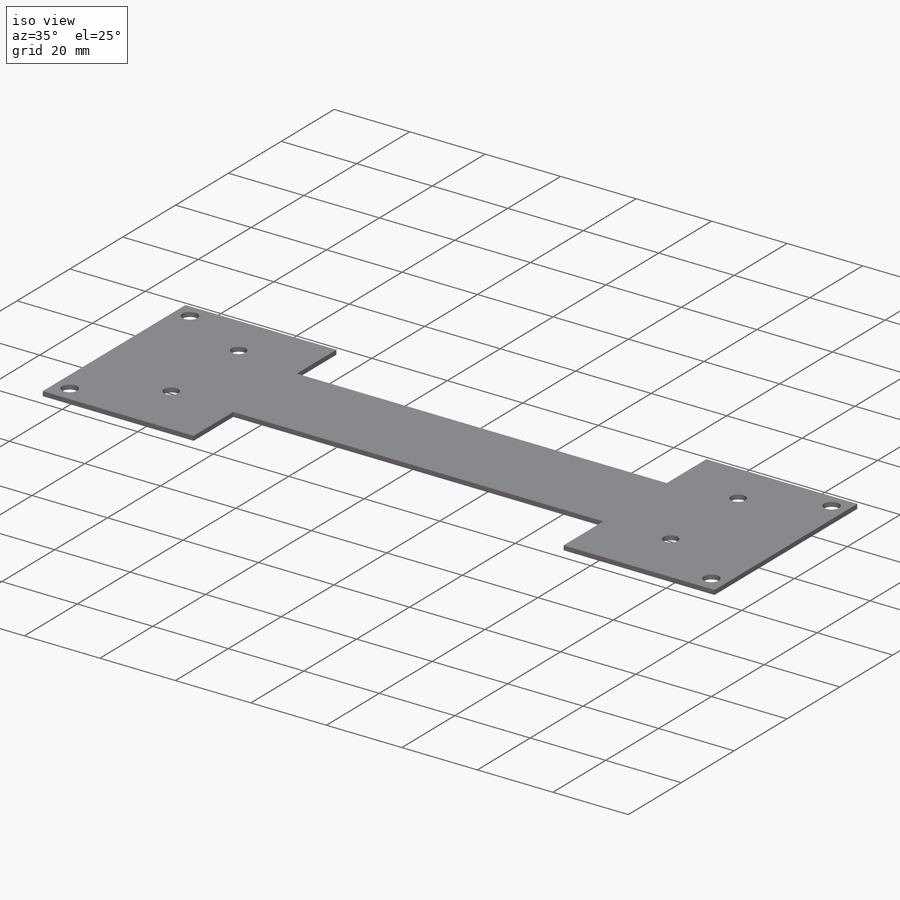
[diagram: iso view]
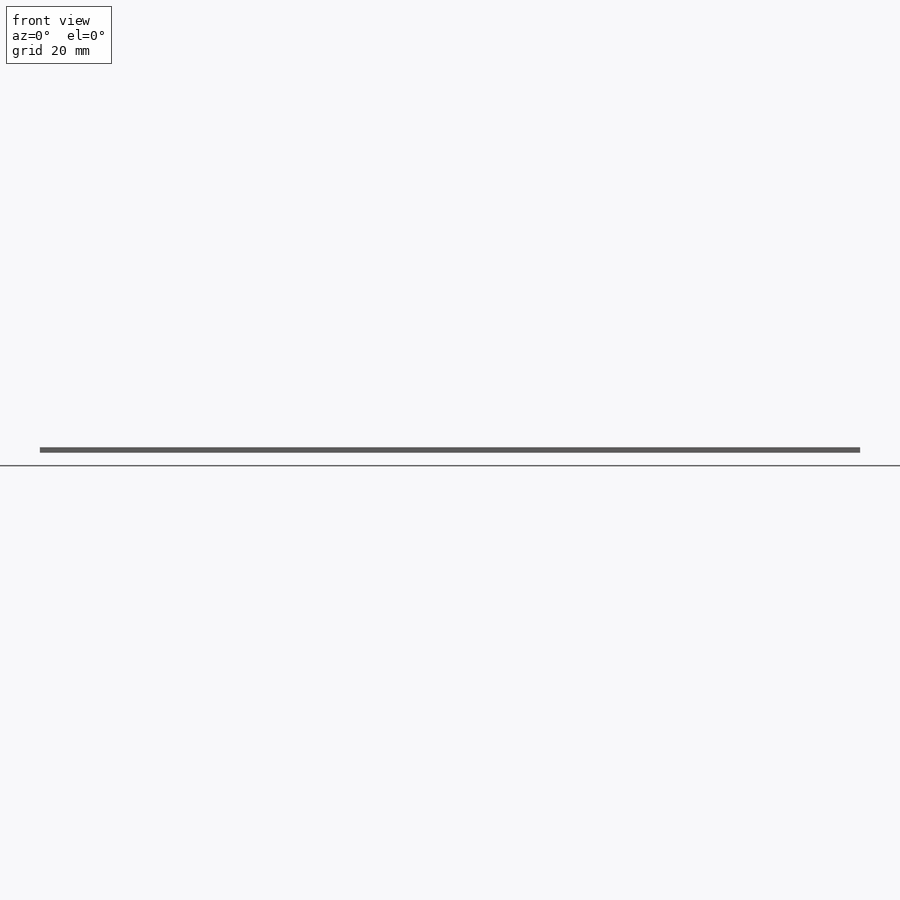
[diagram: front view]
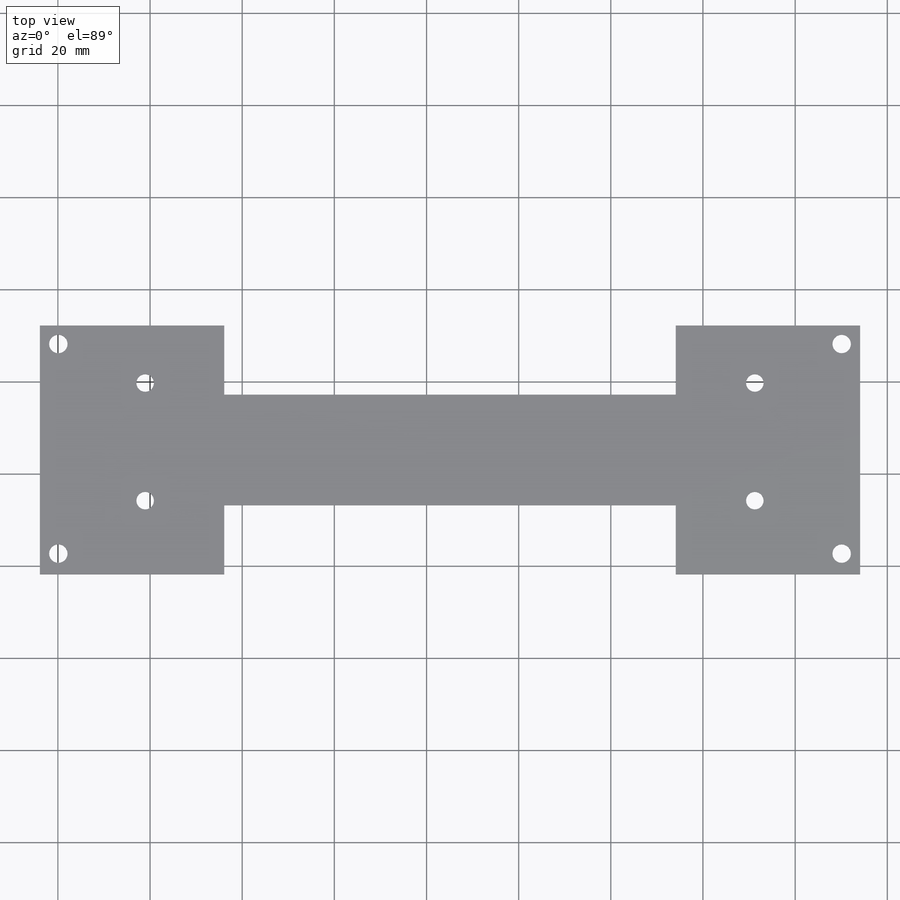
[diagram: top view]
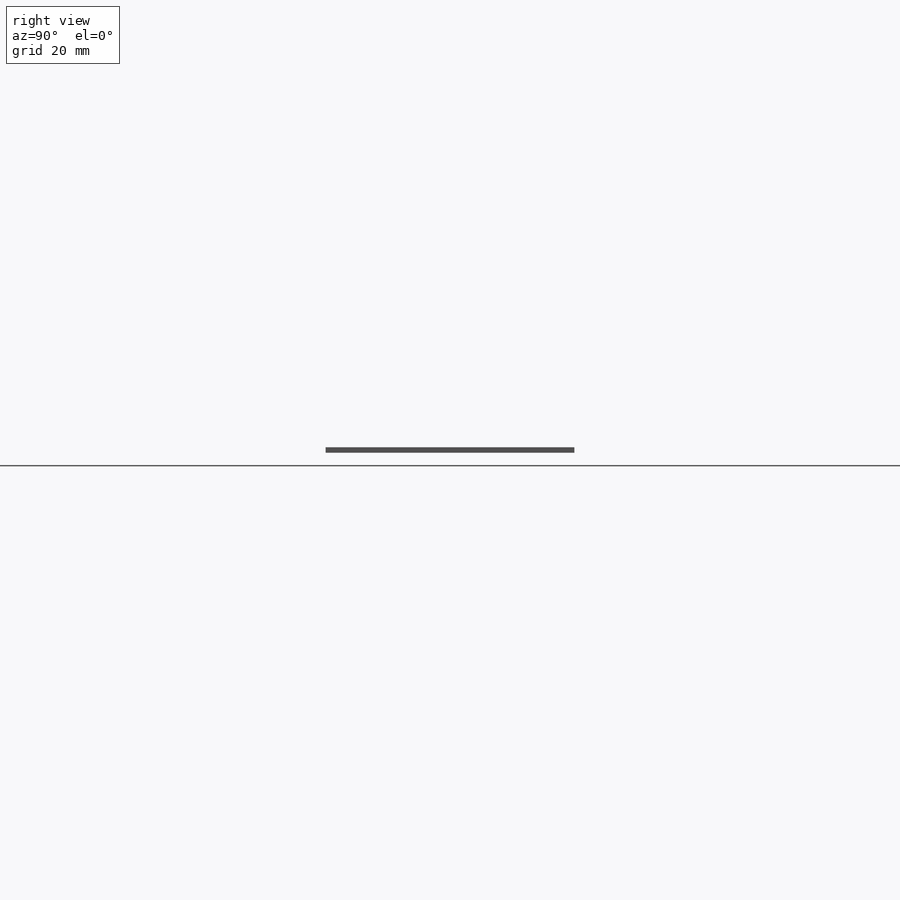
[diagram: right view]
SOLIDWORKS PART (.sldprt)
format: sldprt  version: not decoded by parser v0  size: 208,896 bytes
history: native  units: mm
features: sketch x7, cut_extrude x4, sheet_metal_op x2, material x1 + 1 further entry (+11 scaffold rows collapsed; 1 parser-record rows omitted)
feature tree (27):
  scaffold x11  (default folders/planes/origin — collapsed)
  material  "Material <not specified>"
  sketch  "Sketch1"  dims[D1=54.0mm D2=178.0mm]
  sheet_metal_op  "Sheet-Metal1"
  sheet_metal_op  "Base-Flange1"
  sketch  "Sketch2"  dims[D1=3.8mm D2=3.8mm D7=3.8mm D8=3.8mm D3=16.0mm D4=22.845mm D5=16.0mm D6=132.31mm D9=22.845mm D10=132.31mm D11=25.53mm D12=25.53mm]
  cut_extrude  "Cut-Extrude1"  Depth=10mm
  sketch  "Sketch3"  dims[c1.D1=40.0mm c1.D2=98.0mm c1.D3=15.0mm c1.D4=15.0mm c1.D5=98.0mm c1.D6=15.0mm c2.D4=15.0mm c2.D5=98.0mm c2.D6=40.0mm]
  cut_extrude  "Cut-Extrude2"  Depth=10mm
  sketch  "Sketch4"  dims[D3=4.0mm D4=4.0mm D1=4.0mm D2=4.0mm D5=4.5mm D6=45.5mm]
  cut_extrude  "Cut-Extrude3"  Depth=10mm
  sketch  "Sketch5"  dims[c1.D1=4.0mm c1.D2=4.0mm c1.D4=4.0mm c1.D3=4.5mm c2.D4=4.0mm c2.D5=4.0mm c2.D6=45.5mm]
  cut_extrude  "Cut-Extrude4"  Depth=10mm
  "Flat-Pattern1"
  sketch  "Bend-Lines1"
  sketch  "Bounding-Box1"
  parser-record x1  (decoder bookkeeping rows leaked as tree rows — omitted from the tree; the rows remain in map.json)
decode coverage: 9 of 13 modeling features carry decoded parameters; 1 rows unclassified (native names shown)
note: suppression state not decoded; provenance and decode notes live in map.json
